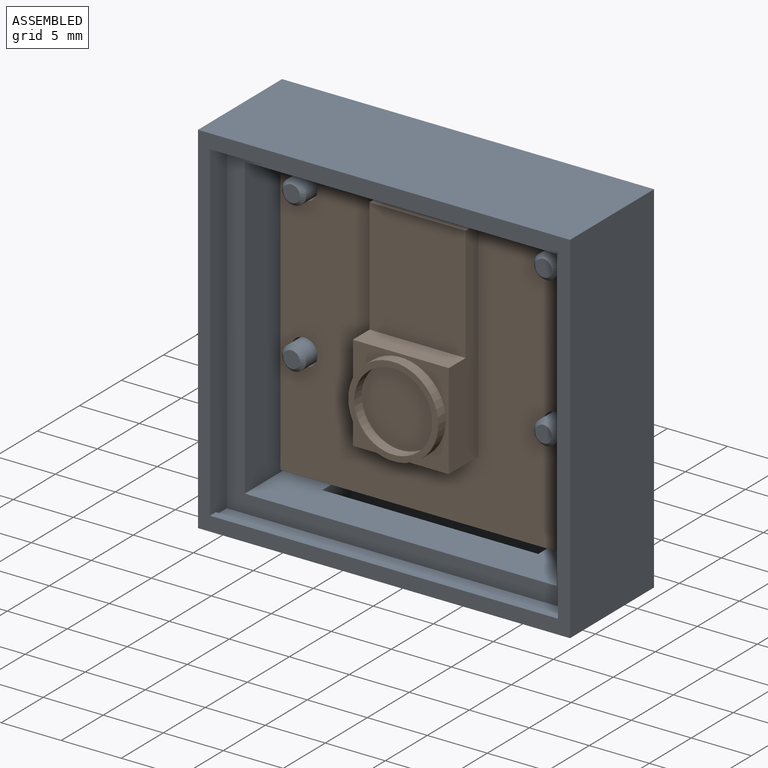
[diagram: assembled view]
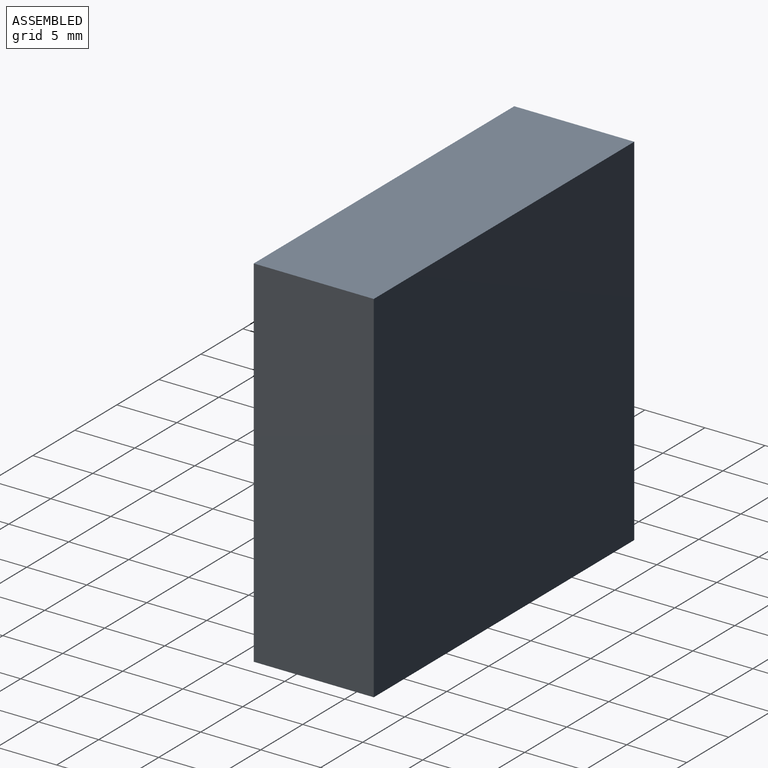
[diagram: assembled view, second angle]
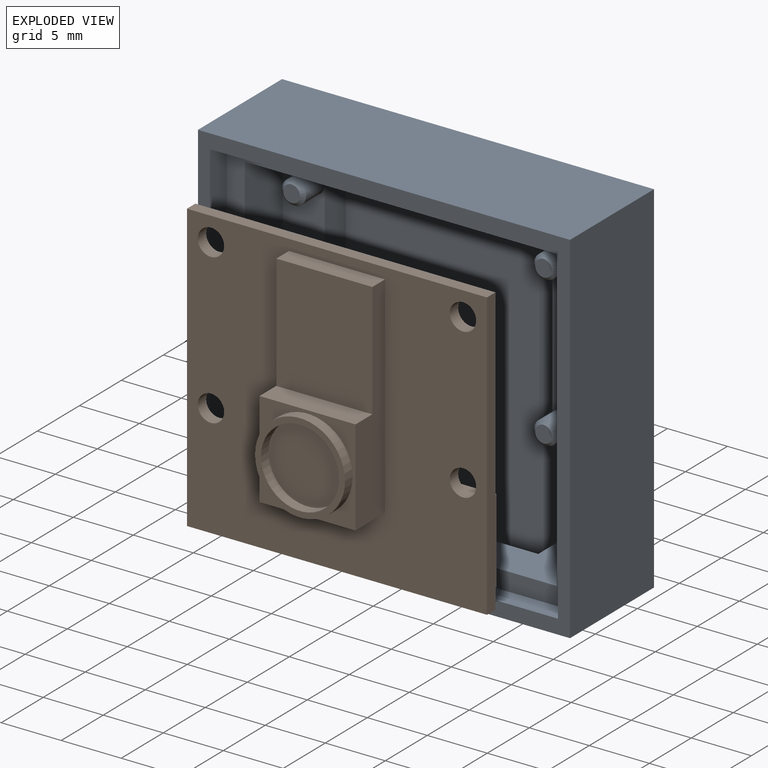
[diagram: exploded view]
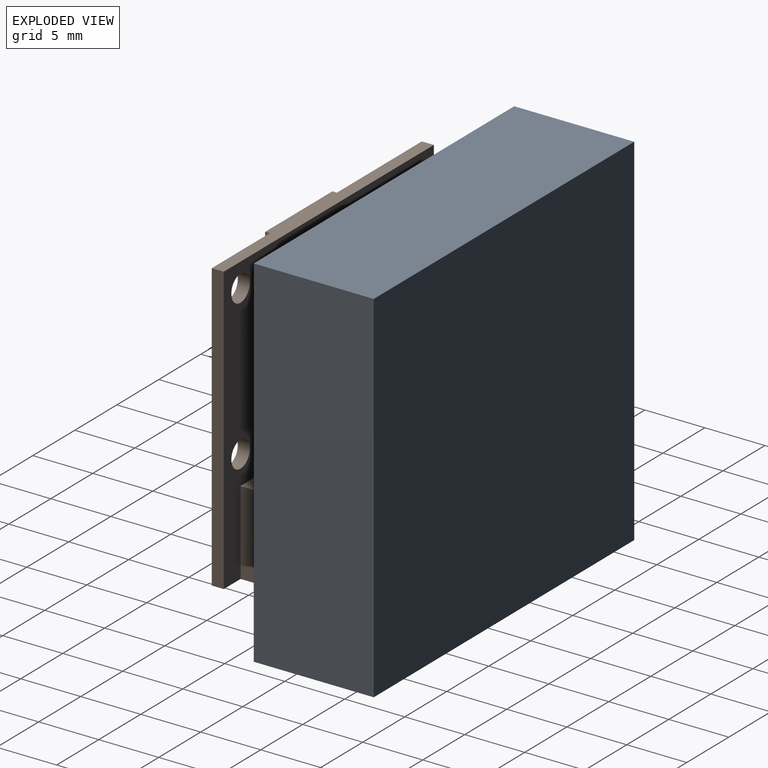
[diagram: exploded view, second angle]
ASSEMBLY  parts=2 mates=2
PART A: 41 faces, bbox 31x10x30 mm
  f0: plane 28x2mm, normal (1,0,0), area 55.7mm2, adj f1,f10,f13,f14,f37,f38,f39,f40
  f1: plane 29x1.3mm, normal (0,0,1), area 37.7mm2, adj f0,f12,f14,f39
  f2: plane 31x10mm, normal (0,0,-1), area 247mm2, adj f6,f7,f9,f10,f11,f30,f31,f32
  f3: plane 25x7mm, normal (-1,0,0), area 132.5mm2, adj f5,f6,f14,f15,f20,f21
  f4: plane 25x7mm, normal (1,0,0), area 132.5mm2, adj f5,f6,f14,f15,f17,f18
  f5: plane 26x7mm, normal (0,0,-1), area 164.5mm2, adj f3,f4,f6,f14,f16,f18,f19,f21
  f6: plane 27.5x26mm, normal (0,-1,0), area 576mm2, adj f2,f3,f4,f5,f15,f16,f17,f19
  f7: plane 30x10mm, normal (1,0,0), area 300mm2, adj f2,f8,f10,f11
  f8: plane 31x10mm, normal (0,0,1), area 310mm2, adj f7,f9,f10,f11
  f9: plane 30x10mm, normal (-1,0,0), area 300mm2, adj f2,f8,f10,f11
  f10: plane 31x30mm, normal (0,-1,0), area 129.6mm2, adj f0,f2,f7,f8,f9,f12,f38,f40
  f11: plane 31x30mm, normal (0,1,0), area 930mm2, adj f2,f7,f8,f9
  f12: plane 28x2mm, normal (-1,0,0), area 55.7mm2, adj f1,f10,f13,f14,f37,f38,f39,f40
  f13: plane 29x1.3mm, normal (0,0,-1), area 37.7mm2, adj f0,f12,f14,f37
  f14: plane 29x28mm, normal (0,-1,0), area 162mm2, adj f0,f1,f3,f4,f5,f12,f13,f15
  f15: plane 26x7mm, normal (0,0,1), area 119mm2, adj f3,f4,f6,f14,f30,f31,f32
  f16: plane 17x2.5mm, normal (1,0,0), area 42.5mm2, adj f5,f6,f17,f18
  f17: plane 3.5x2.5mm, normal (0,0,-1), area 8.8mm2, adj f4,f6,f16,f18
  f18: plane 17x3.5mm, normal (0,-1,0), area 53.2mm2, adj f4,f5,f16,f17,f22,f24
  f19: plane 17x2.5mm, normal (-1,0,0), area 42.5mm2, adj f5,f6,f20,f21
  f20: plane 3.5x2.5mm, normal (0,0,-1), area 8.8mm2, adj f3,f6,f19,f21
  f21: plane 17x3.5mm, normal (0,-1,0), area 53.2mm2, adj f3,f5,f19,f20,f26,f28
  f22: cylinder r=1mm len=2.2mm, axis (0,1,0), area 13.8mm2, adj f18,f36
  f23: plane 1.4x1.4mm, normal (0,-1,0), area 1.5mm2, adj f36
  f24: cylinder r=1mm len=2.2mm, axis (0,1,0), area 13.8mm2, adj f18,f35
  f25: plane 1.4x1.4mm, normal (0,-1,0), area 1.5mm2, adj f35
  f26: cylinder r=1mm len=2.2mm, axis (0,1,0), area 13.8mm2, adj f21,f34
  f27: plane 1.4x1.4mm, normal (0,-1,0), area 1.5mm2, adj f34
  f28: cylinder r=1mm len=2.2mm, axis (0,1,0), area 13.8mm2, adj f21,f33
  f29: plane 1.4x1.4mm, normal (0,-1,0), area 1.5mm2, adj f33
  f30: plane 3.5x2.5mm, normal (-1,0,0), area 8.7mm2, adj f2,f6,f15,f32
  f31: plane 3.5x2.5mm, normal (1,0,0), area 8.7mm2, adj f2,f6,f15,f32
  f32: plane 18x2.5mm, normal (0,1,0), area 45mm2, adj f2,f15,f30,f31
  f33: cone r=1mm half-angle=45deg, axis (0,1,0), area 2.3mm2, adj f28,f29
  f34: cone r=1mm half-angle=45deg, axis (0,1,0), area 2.3mm2, adj f26,f27
  f35: cone r=0.7mm half-angle=45deg, axis (0,1,0), area 2.3mm2, adj f24,f25
  f36: cone r=0.7mm half-angle=45deg, axis (0,1,0), area 2.3mm2, adj f22,f23
  f37: plane 29x0.2mm, normal (0,1,0), area 5.8mm2, adj f0,f12,f13,f38
  f38: plane 29x0.7mm, normal (0,0,-1), area 20.3mm2, adj f0,f10,f12,f37
  f39: plane 29x0.2mm, normal (0,1,0), area 5.8mm2, adj f0,f1,f12,f40
  f40: plane 29x0.7mm, normal (0,0,1), area 20.3mm2, adj f0,f10,f12,f39
PART B: 25 faces, bbox 25x8.4x23.9 mm
  f0: plane 25x23.9mm, normal (0,-1,0), area 441.6mm2, adj f1,f2,f3,f4,f5,f6,f7,f8
  f1: plane 23.9x1mm, normal (-1,0,0), area 23.9mm2, adj f0,f2,f4,f9
  f2: plane 25x4mm, normal (0,0,-1), area 88mm2, adj f0,f1,f3,f9,f21,f23,f24
  f3: plane 23.9x1mm, normal (1,0,0), area 23.9mm2, adj f0,f2,f4,f9
  f4: plane 25x1mm, normal (0,0,1), area 25mm2, adj f0,f1,f3,f9
  f5: cylinder r=1.1mm len=2.2mm, axis (0,1,0), area 6.9mm2, adj f0,f9
  f6: cylinder r=1.1mm len=2.2mm, axis (0,1,0), area 6.9mm2, adj f0,f9
  f7: cylinder r=1.1mm len=2.2mm, axis (0,1,0), area 6.9mm2, adj f0,f9
  f8: cylinder r=1.1mm len=2.2mm, axis (0,1,0), area 6.9mm2, adj f0,f9
  f9: plane 25x23.9mm, normal (0,1,0), area 435.3mm2, adj f1,f2,f3,f4,f5,f6,f7,f8
  f10: plane 17.59x3.5mm, normal (-1,0,0), area 42.4mm2, adj f0,f11,f13,f14,f19,f20
  f11: plane 8x3.5mm, normal (0,0,-1), area 28mm2, adj f0,f10,f12,f14
  f12: plane 17.59x3.5mm, normal (1,0,0), area 42.4mm2, adj f0,f11,f13,f14,f19,f20
  f13: plane 8x2mm, normal (0,0,1), area 16mm2, adj f10,f12,f14,f20
  f14: plane 8x8mm, normal (0,-1,0), area 19.8mm2, adj f10,f11,f12,f13,f16
  f15: cylinder r=3.25mm len=6.5mm, axis (0,1,0), area 18.4mm2, adj f17,f18
  f16: cylinder r=3.75mm len=7.5mm, axis (0,1,0), area 21.2mm2, adj f14,f17
  f17: plane 7.5x7.5mm, normal (0,-1,0), area 11mm2, adj f15,f16
  f18: plane 6.5x6.5mm, normal (0,-1,0), area 33.2mm2, adj f15
  f19: plane 8x1.5mm, normal (0,0,1), area 12mm2, adj f0,f10,f12,f20
  f20: plane 9.59x8mm, normal (0,-1,0), area 76.7mm2, adj f10,f12,f13,f19
  f21: plane 7x3mm, normal (-1,0,0), area 21mm2, adj f2,f9,f22,f24
  f22: plane 21x3mm, normal (0,0,1), area 63mm2, adj f9,f21,f23,f24
  f23: plane 7x3mm, normal (1,0,0), area 21mm2, adj f2,f9,f22,f24
  f24: plane 21x7mm, normal (0,1,0), area 147mm2, adj f2,f21,f22,f23
PLACE A t=(-35.7,-2.72,-14.33)mm
PLACE B t=(-35.7,-6.22,-14.33)mm
MATE cylindrical B.f5 <-> A.f22  axis (0,1,0) through (-46.2,-7.22,-1.83)mm
MATE planar A.f21 <-> B.f9  axis (0,-1,0) through (-24.37,-6.22,-7.8)mm
